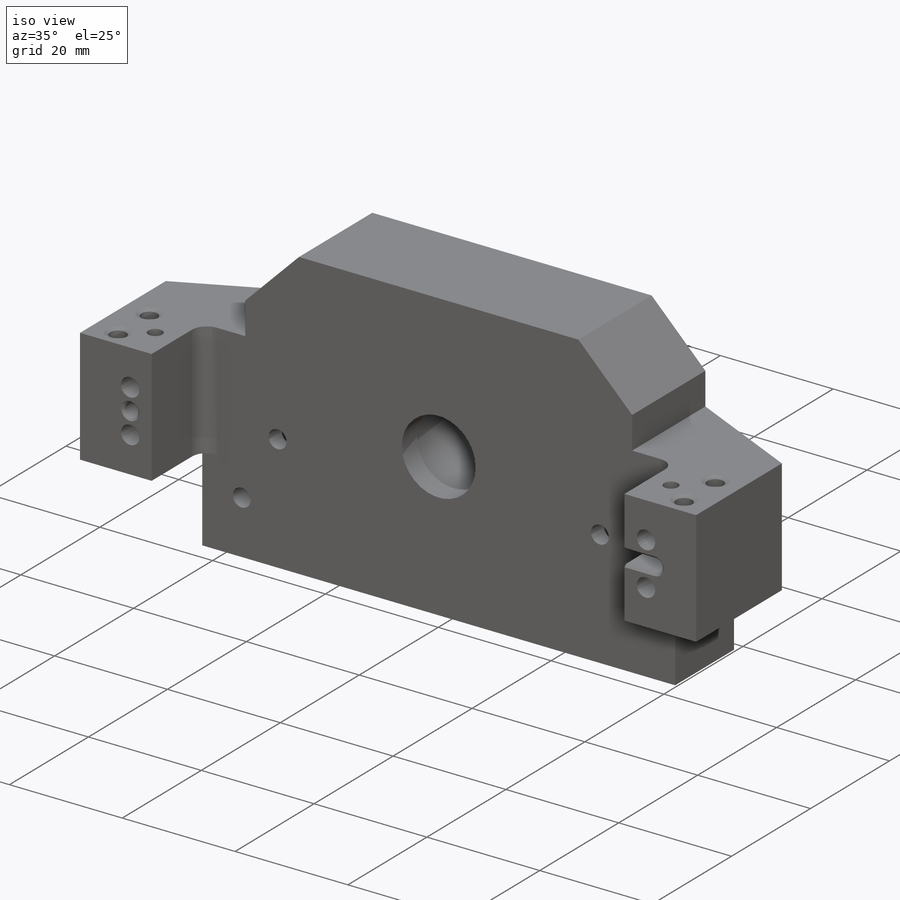
[diagram: iso view]
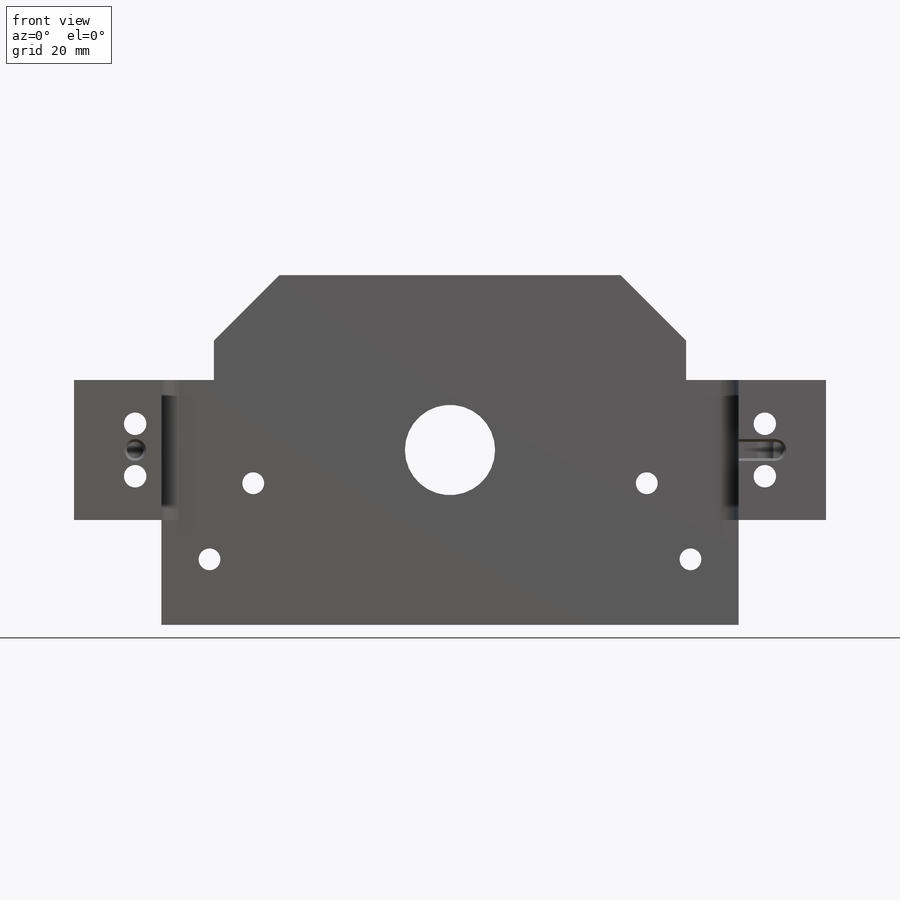
[diagram: front view]
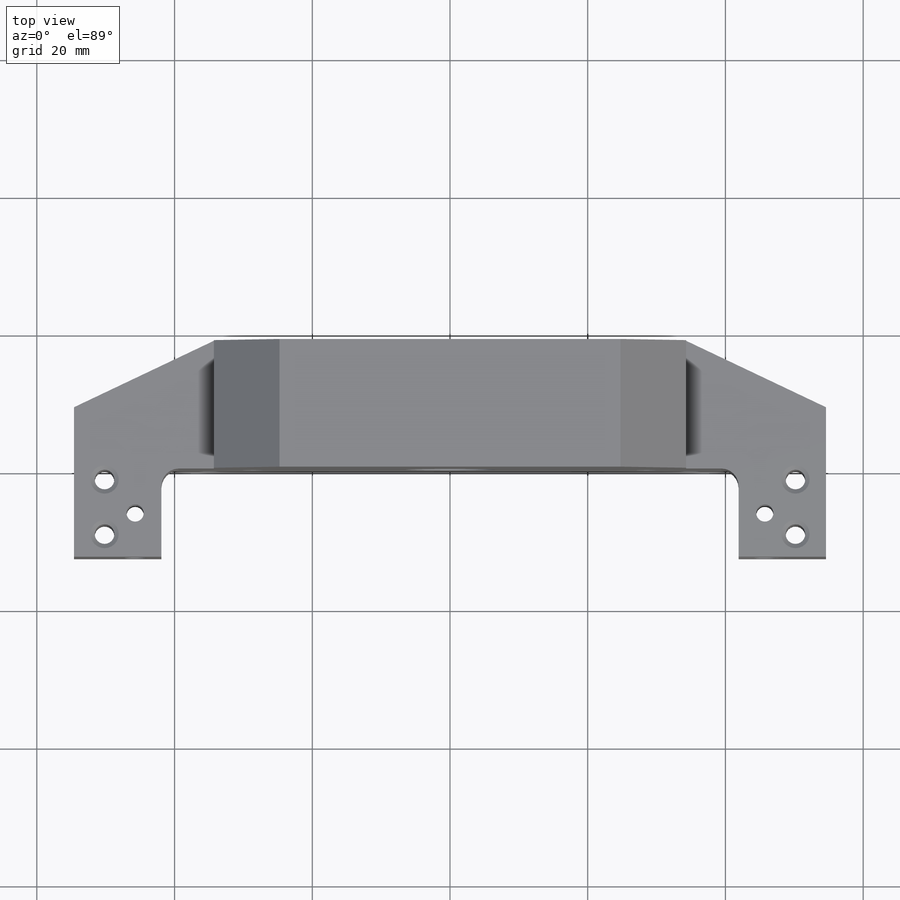
[diagram: top view]
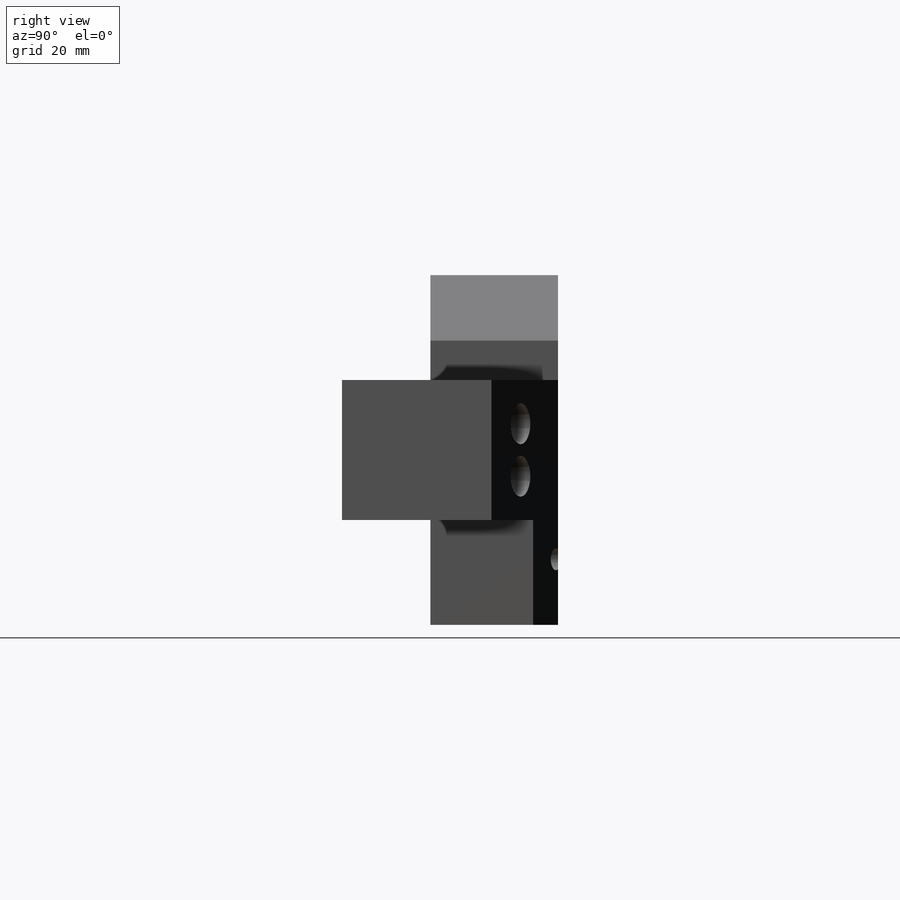
[diagram: right view]
SOLIDWORKS PART (.sldprt)
format: sldprt  version: not decoded by parser v0  size: 868,352 bytes
history: native  units: mm
features: sketch x24, hole x8, extrude x4, cut_extrude x3, chamfer x3, material x1, fillet x1 (+14 scaffold rows collapsed)
feature tree (58):
  scaffold x14  (default folders/planes/origin — collapsed)
  material  "6061-T6 Al"
  sketch  "Sketch2"  dims[c1.D1=83.82mm c1.D2=12.7mm c1.D3=44.45mm c1.D4=25.4mm c1.D5=25.4mm c1.D6=76.2mm c1.D7=63.5mm c2.D3=38.1mm c2.D4=12.7mm c2.D5=76.2mm c3.D4=25.4mm c3.D3=6.35mm c4.D4=25.4mm c4.D5=68.58mm c4.D6=13.97mm c5.D4=18.542mm c5.D3=22.86mm c5.D7=109.22mm c5.D2=12.7mm c5.D5=25.4mm c6.D2=109.22mm c6.D5=41.91mm c6.D7=34.29mm c6.D3=31.369mm c6.D6=18.669mm c6.D8=9.652mm]
  extrude  "Extrude1"  Depth=20.32mm
  sketch  "Sketch19"  dims[D1=~22.550637mm]
  extrude  "Extrude2"  [1 undecoded]
  sketch  "Sketch24"  dims[D1=18.669mm D2=68.58mm]
  extrude  "Extrude3"  Depth=15.24mm
  sketch  "Sketch25"  dims[c1.D1=18.669mm c1.D2=68.58mm c2.D1=~0.122459mm]
  extrude  "Extrude4"  Depth=15.24mm
  sketch  "Sketch38"  dims[D1=35.56mm D2=50.8mm D3=10.16mm]
  cut_extrude  "Spherical washer Center Relief"  Depth=0.762mm
  hole  "Tapped Hole For 1/4-20 Helicoil"  Diameter=6.7564mm Depth=20.574mm
  sketch  "Sketch27"  dims[D1=57.15mm D2=28.575mm D3=6.35mm]
  sketch  "Sketch26"  dims[hole-wizard template sketch: 27 standard entries collapsed; hole parameters kept: c8.Tap Drill Depth=20.574mm c8.Thread Major Dia.=~8.09498mm c8.Thread Depth=11.684mm c8.Near C'Sink Dia.=8.128mm c8.D6=~4.399409mm c8.Near C'Sink Angle=90.0deg c8.D7=~14.816244mm c8.Drill Angle=118.0deg]
  sketch  "Sketch30"  dims[c1.D1=1.27mm c1.D4=~3.19024mm c2.D1=~8.09498mm c2.D3=6.7564mm c3.D1=69.85mm c3.D2=34.925mm c3.D3=13.97mm c3.D5=~3.18008mm c3.D6=3.175mm c4.D1=6.35mm c4.D2=7.62mm c4.D3=6.35mm]
  cut_extrude  "Pin & Slot Holes"  Depth=9.525mm
  hole  "#4 Clearance Hole1"  Diameter=3.175mm Depth=31.369mm
  sketch  "Sketch29"
  sketch  "Sketch28"  dims[hole-wizard template sketch: 60 standard entries collapsed; hole parameters kept: c18.Thru Hole Depth=31.369mm]
  hole  "#4 Clearance Hole2"  Diameter=3.175mm Depth=31.369mm
  sketch  "Sketch33"
  sketch  "Sketch32"  dims[hole-wizard template sketch: 60 standard entries collapsed; hole parameters kept: c18.Thru Hole Depth=31.369mm]
  hole  "CBORE for #4 Socket Head Cap Screw1"  Diameter=3.2639mm Depth=31.369mm
  sketch  "Sketch16"  dims[D1=7.62mm D2=7.62mm D3=91.44mm D4=45.72mm]
  sketch  "Sketch15"  dims[hole-wizard template sketch: 42 standard entries collapsed; hole parameters kept: c12.Thru Hole Depth=31.369mm c12.C'Bore Dia.=5.9436mm c12.C'Bore Depth=18.2372mm]
  hole  "Tapped Hole for 1/2-13  Helicoil1"  Diameter=13.09624mm Depth=31.369mm
  sketch  "Sketch23"  dims[D1=10.16mm]
  sketch  "Sketch22"  dims[hole-wizard template sketch: 41 standard entries collapsed; hole parameters kept: c12.Thru Tap Drill Dia.=~13.09624mm c12.Thru Tap Drill Depth=31.369mm c12.Thread Major Dia.=~15.34668mm c12.Thread Depth=14.732mm c12.Near C'Sink Dia.=~16.61668mm c12.D6=~4.399409mm c12.Near C'Sink Angle=120.0deg c12.Far C'Sink Dia.=~16.61668mm c12.D8=~2.963249mm c12.Far C'Sink Angle=120.0deg]
  hole  "#40 (0.098) Diameter Hole0"  Diameter=2.4892mm Depth=35.560025mm
  sketch  "Sketch37"  dims[D1=6.35mm]
  sketch  "Sketch36"  dims[hole-wizard template sketch: 59 standard entries collapsed; hole parameters kept: c18.Thru Hole Dia.=2.4892mm c18.Thru Hole Depth=~35.560025mm]
  hole  "#4-40 Tapped Hole1"  Diameter=2.8448mm Depth=20.32mm
  sketch  "Sketch21"  dims[D1=100.33mm D2=50.165mm D3=9.398mm D4=7.9248mm]
  sketch  "Sketch20"  dims[hole-wizard template sketch: 46 standard entries collapsed; hole parameters kept: c15.Thread Major Dia.=2.8448mm c15.Thru Tap Drill Depth=20.32mm c15.Near C'Sink Dia.=4.1148mm c15.D4=~3.666174mm c15.Near C'Sink Angle=120.0deg c15.Far C'Sink Dia.=4.1148mm c15.D6=~9.919017mm c15.Far C'Sink Angle=120.0deg]
  chamfer  "Chamfer1"  Distance=9.525mm Angle=45deg
  fillet  "Fillet1"  Radius=2.54mm
  chamfer  "Chamfer2"  Distance=0.9906mm Angle=45deg
  sketch  "Sketch39"
  hole  "#4 Clearance Hole3"  Diameter=2.3876mm Depth=6.35mm
  sketch  "Sketch43"
  sketch  "Sketch42"  dims[hole-wizard template sketch: 39 standard entries collapsed; hole parameters kept: c13.Hole Dia.=2.3876mm c13.Hole Depth=6.35mm c13.Near C'Sink Dia.=3.175mm c13.D4=~33.297463mm c13.Near C'Sink Angle=90.0deg c14.D5=~14.816244mm c14.Drill Angle=118.0deg]
  sketch  "Sketch44"  dims[D1=1.524mm D2=~3.19024mm]
  cut_extrude  "Extrude5"  Depth=6.35mm
  chamfer  "Chamfer3"  Distance=0.381mm Angle=45deg
decode coverage: 38 of 43 modeling features carry decoded parameters
note: ~ marks probable driven/reference dimensions
note: 1 parameter value undecoded
summary: Diameter pulled from absorbed wizard sketch
note: suppression state not decoded; provenance and decode notes live in map.json
